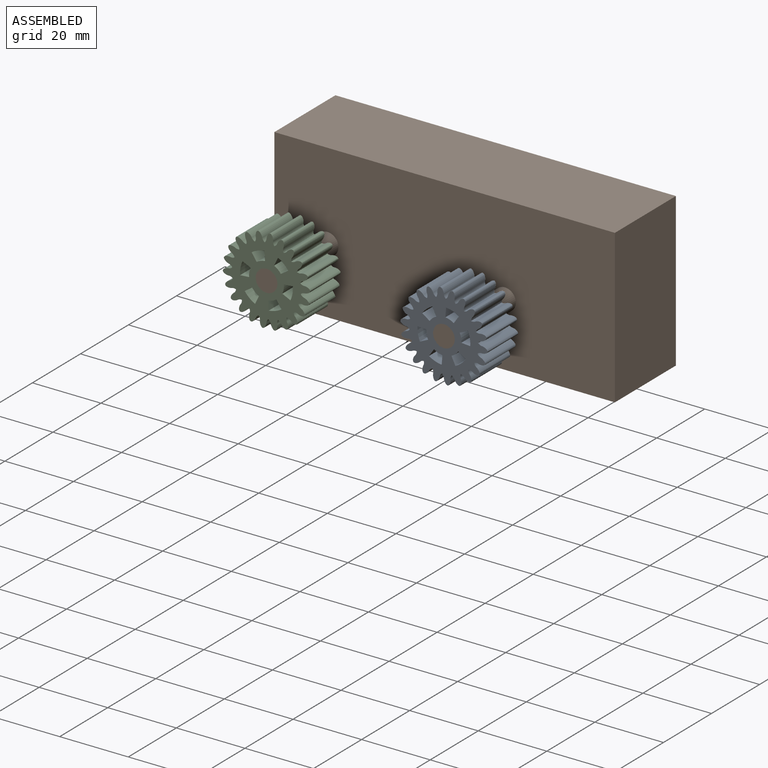
[diagram: assembled view]
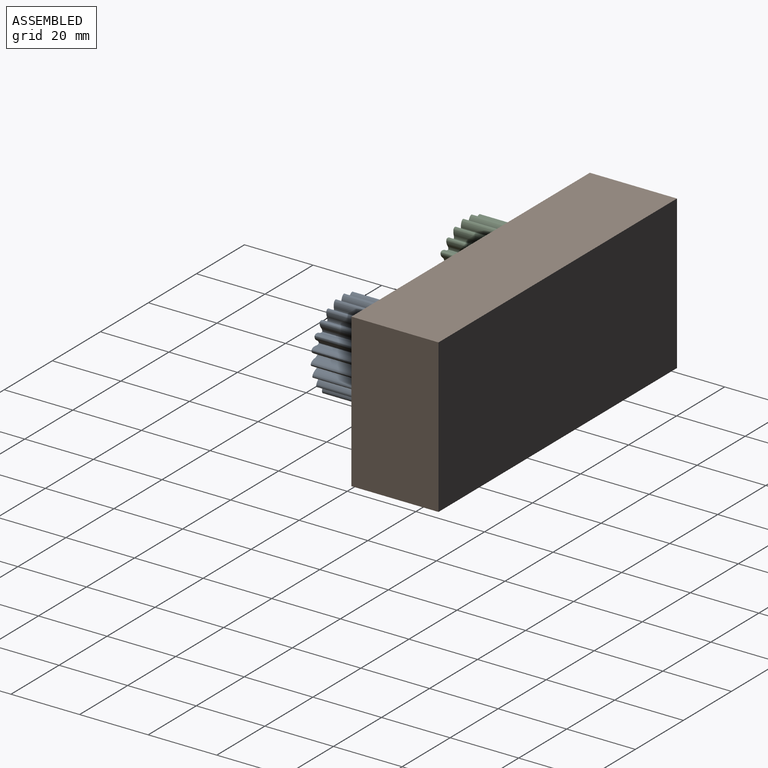
[diagram: assembled view, second angle]
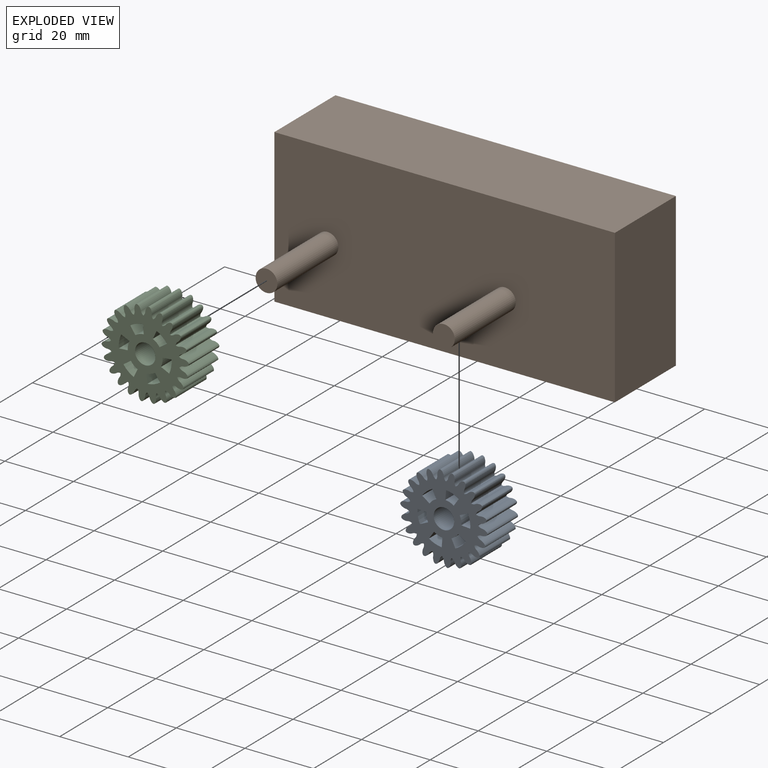
[diagram: exploded view]
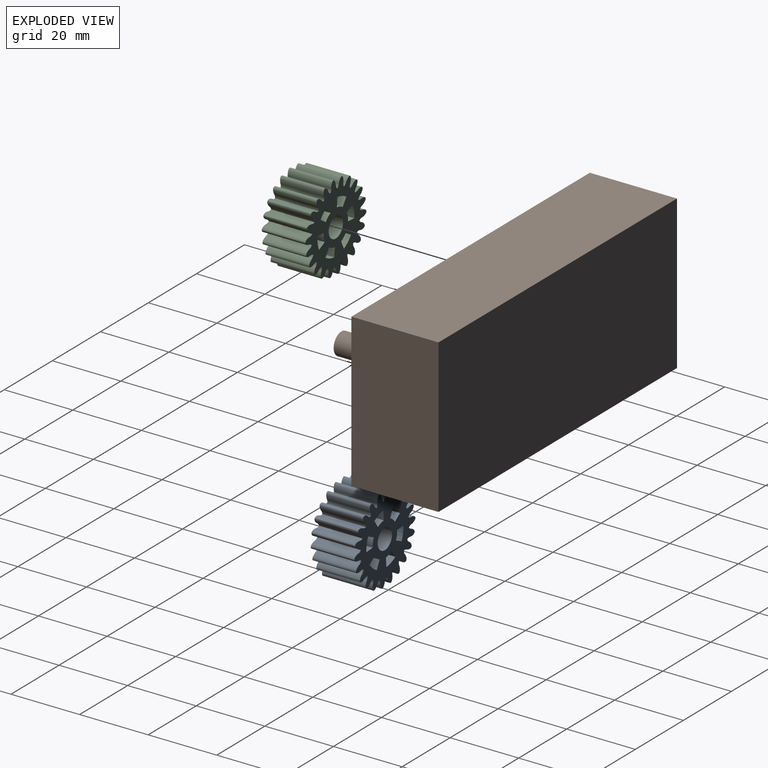
[diagram: exploded view, second angle]
ASSEMBLY  parts=3 mates=2
PART A: 159 faces, bbox 25.3x12.7x25.5 mm
  f0: cylinder r=0.93mm len=12.7mm, axis (0,1,0), area 9mm2, adj f1,f131,f132,f133
  f1: cylinder r=0.93mm len=12.7mm, axis (0,1,0), area 9mm2, adj f0,f2,f132,f133
  f2: cylinder r=2.63mm len=12.7mm, axis (0,1,0), area 19.8mm2, adj f1,f3,f132,f133
  f3: cylinder r=1.62mm len=12.7mm, axis (0,1,0), area 14mm2, adj f2,f4,f132,f133
  f4: cylinder r=1.62mm len=12.7mm, axis (0,1,0), area 14mm2, adj f3,f5,f132,f133
  f5: cylinder r=2.63mm len=12.7mm, axis (0,1,0), area 19.8mm2, adj f4,f6,f132,f133
  f6: cylinder r=0.93mm len=12.7mm, axis (0,1,0), area 9mm2, adj f5,f7,f132,f133
  f7: cylinder r=0.93mm len=12.7mm, axis (0,1,0), area 9mm2, adj f6,f8,f132,f133
  f8: cylinder r=2.63mm len=12.7mm, axis (0,1,0), area 19.8mm2, adj f7,f9,f132,f133
  f9: cylinder r=1.62mm len=12.7mm, axis (0,1,0), area 14mm2, adj f8,f10,f132,f133
  f10: cylinder r=1.62mm len=12.7mm, axis (0,1,0), area 14mm2, adj f9,f11,f132,f133
  f11: cylinder r=2.63mm len=12.7mm, axis (0,1,0), area 19.8mm2, adj f10,f12,f132,f133
  f12: cylinder r=0.93mm len=12.7mm, axis (0,1,0), area 9mm2, adj f11,f13,f132,f133
  f13: cylinder r=0.93mm len=12.7mm, axis (0,1,0), area 9mm2, adj f12,f14,f132,f133
  f14: cylinder r=2.63mm len=12.7mm, axis (0,1,0), area 19.8mm2, adj f13,f15,f132,f133
  f15: cylinder r=1.62mm len=12.7mm, axis (0,1,0), area 14mm2, adj f14,f16,f132,f133
  f16: cylinder r=1.62mm len=12.7mm, axis (0,1,0), area 14mm2, adj f15,f17,f132,f133
  f17: cylinder r=2.63mm len=12.7mm, axis (0,1,0), area 19.8mm2, adj f16,f18,f132,f133
  f18: cylinder r=0.93mm len=12.7mm, axis (0,1,0), area 9mm2, adj f17,f19,f132,f133
  f19: cylinder r=0.93mm len=12.7mm, axis (0,1,0), area 9mm2, adj f18,f20,f132,f133
  f20: cylinder r=2.63mm len=12.7mm, axis (0,1,0), area 19.8mm2, adj f19,f21,f132,f133
  f21: cylinder r=1.62mm len=12.7mm, axis (0,1,0), area 14mm2, adj f20,f22,f132,f133
  f22: cylinder r=1.62mm len=12.7mm, axis (0,1,0), area 14mm2, adj f21,f23,f132,f133
  f23: cylinder r=2.63mm len=12.7mm, axis (0,1,0), area 19.8mm2, adj f22,f24,f132,f133
  f24: cylinder r=0.93mm len=12.7mm, axis (0,1,0), area 9mm2, adj f23,f25,f132,f133
  f25: cylinder r=0.93mm len=12.7mm, axis (0,1,0), area 9mm2, adj f24,f26,f132,f133
  f26: cylinder r=2.63mm len=12.7mm, axis (0,1,0), area 19.8mm2, adj f25,f27,f132,f133
  f27: cylinder r=1.62mm len=12.7mm, axis (0,1,0), area 14mm2, adj f26,f28,f132,f133
  f28: cylinder r=1.62mm len=12.7mm, axis (0,1,0), area 14mm2, adj f27,f29,f132,f133
  f29: cylinder r=2.63mm len=12.7mm, axis (0,1,0), area 19.8mm2, adj f28,f30,f132,f133
  f30: cylinder r=0.93mm len=12.7mm, axis (0,1,0), area 9mm2, adj f29,f31,f132,f133
  f31: cylinder r=0.93mm len=12.7mm, axis (0,1,0), area 9mm2, adj f30,f32,f132,f133
  f32: cylinder r=2.63mm len=12.7mm, axis (0,1,0), area 19.8mm2, adj f31,f33,f132,f133
  f33: cylinder r=1.62mm len=12.7mm, axis (0,1,0), area 14mm2, adj f32,f34,f132,f133
  f34: cylinder r=1.62mm len=12.7mm, axis (0,1,0), area 14mm2, adj f33,f35,f132,f133
  f35: cylinder r=2.63mm len=12.7mm, axis (0,1,0), area 19.8mm2, adj f34,f36,f132,f133
  f36: cylinder r=0.93mm len=12.7mm, axis (0,1,0), area 9mm2, adj f35,f37,f132,f133
  f37: cylinder r=0.93mm len=12.7mm, axis (0,1,0), area 9mm2, adj f36,f38,f132,f133
  f38: cylinder r=2.63mm len=12.7mm, axis (0,1,0), area 19.8mm2, adj f37,f39,f132,f133
  f39: cylinder r=1.62mm len=12.7mm, axis (0,1,0), area 14mm2, adj f38,f40,f132,f133
  f40: cylinder r=1.62mm len=12.7mm, axis (0,1,0), area 14mm2, adj f39,f41,f132,f133
  f41: cylinder r=2.63mm len=12.7mm, axis (0,1,0), area 19.8mm2, adj f40,f42,f132,f133
  f42: cylinder r=0.93mm len=12.7mm, axis (0,1,0), area 9mm2, adj f41,f43,f132,f133
  f43: cylinder r=0.93mm len=12.7mm, axis (0,1,0), area 9mm2, adj f42,f44,f132,f133
  f44: cylinder r=2.63mm len=12.7mm, axis (0,1,0), area 19.8mm2, adj f43,f45,f132,f133
  f45: cylinder r=1.62mm len=12.7mm, axis (0,1,0), area 14mm2, adj f44,f46,f132,f133
  f46: cylinder r=1.62mm len=12.7mm, axis (0,1,0), area 14mm2, adj f45,f47,f132,f133
  f47: cylinder r=2.63mm len=12.7mm, axis (0,1,0), area 19.8mm2, adj f46,f48,f132,f133
  f48: cylinder r=0.93mm len=12.7mm, axis (0,1,0), area 9mm2, adj f47,f49,f132,f133
  f49: cylinder r=0.93mm len=12.7mm, axis (0,1,0), area 9mm2, adj f48,f50,f132,f133
  f50: cylinder r=2.63mm len=12.7mm, axis (0,1,0), area 19.8mm2, adj f49,f51,f132,f133
  f51: cylinder r=1.62mm len=12.7mm, axis (0,1,0), area 14mm2, adj f50,f52,f132,f133
  f52: cylinder r=1.62mm len=12.7mm, axis (0,1,0), area 14mm2, adj f51,f53,f132,f133
  f53: cylinder r=2.63mm len=12.7mm, axis (0,1,0), area 19.8mm2, adj f52,f54,f132,f133
  f54: cylinder r=0.93mm len=12.7mm, axis (0,1,0), area 9mm2, adj f53,f55,f132,f133
  f55: cylinder r=0.93mm len=12.7mm, axis (0,1,0), area 9mm2, adj f54,f56,f132,f133
  f56: cylinder r=2.63mm len=12.7mm, axis (0,1,0), area 19.8mm2, adj f55,f57,f132,f133
  f57: cylinder r=1.62mm len=12.7mm, axis (0,1,0), area 14mm2, adj f56,f58,f132,f133
  f58: cylinder r=1.62mm len=12.7mm, axis (0,1,0), area 14mm2, adj f57,f59,f132,f133
  f59: cylinder r=2.63mm len=12.7mm, axis (0,1,0), area 19.8mm2, adj f58,f60,f132,f133
  f60: cylinder r=0.93mm len=12.7mm, axis (0,1,0), area 9mm2, adj f59,f61,f132,f133
  f61: cylinder r=0.93mm len=12.7mm, axis (0,1,0), area 9mm2, adj f60,f62,f132,f133
  f62: cylinder r=2.63mm len=12.7mm, axis (0,1,0), area 19.8mm2, adj f61,f63,f132,f133
  f63: cylinder r=1.62mm len=12.7mm, axis (0,1,0), area 14mm2, adj f62,f64,f132,f133
  f64: cylinder r=1.62mm len=12.7mm, axis (0,1,0), area 14mm2, adj f63,f65,f132,f133
  f65: cylinder r=2.63mm len=12.7mm, axis (0,1,0), area 19.8mm2, adj f64,f66,f132,f133
  f66: cylinder r=0.93mm len=12.7mm, axis (0,1,0), area 9mm2, adj f65,f67,f132,f133
  f67: cylinder r=0.93mm len=12.7mm, axis (0,1,0), area 9mm2, adj f66,f68,f132,f133
  f68: cylinder r=2.63mm len=12.7mm, axis (0,1,0), area 19.8mm2, adj f67,f69,f132,f133
  f69: cylinder r=1.62mm len=12.7mm, axis (0,1,0), area 14mm2, adj f68,f70,f132,f133
  f70: cylinder r=1.62mm len=12.7mm, axis (0,1,0), area 14mm2, adj f69,f71,f132,f133
  f71: cylinder r=2.63mm len=12.7mm, axis (0,1,0), area 19.8mm2, adj f70,f72,f132,f133
  f72: cylinder r=0.93mm len=12.7mm, axis (0,1,0), area 9mm2, adj f71,f73,f132,f133
  f73: cylinder r=0.93mm len=12.7mm, axis (0,1,0), area 9mm2, adj f72,f74,f132,f133
  f74: cylinder r=2.63mm len=12.7mm, axis (0,1,0), area 19.8mm2, adj f73,f75,f132,f133
  f75: cylinder r=1.62mm len=12.7mm, axis (0,1,0), area 14mm2, adj f74,f76,f132,f133
  f76: cylinder r=1.62mm len=12.7mm, axis (0,1,0), area 14mm2, adj f75,f77,f132,f133
  f77: cylinder r=2.63mm len=12.7mm, axis (0,1,0), area 19.8mm2, adj f76,f78,f132,f133
  f78: cylinder r=0.93mm len=12.7mm, axis (0,1,0), area 9mm2, adj f77,f79,f132,f133
  f79: cylinder r=0.93mm len=12.7mm, axis (0,1,0), area 9mm2, adj f78,f80,f132,f133
  f80: cylinder r=2.63mm len=12.7mm, axis (0,1,0), area 19.8mm2, adj f79,f81,f132,f133
  f81: cylinder r=1.62mm len=12.7mm, axis (0,1,0), area 14mm2, adj f80,f82,f132,f133
  f82: cylinder r=1.62mm len=12.7mm, axis (0,1,0), area 14mm2, adj f81,f83,f132,f133
  f83: cylinder r=2.63mm len=12.7mm, axis (0,1,0), area 19.8mm2, adj f82,f84,f132,f133
  f84: cylinder r=0.93mm len=12.7mm, axis (0,1,0), area 9mm2, adj f83,f85,f132,f133
  f85: cylinder r=0.93mm len=12.7mm, axis (0,1,0), area 9mm2, adj f84,f86,f132,f133
  f86: cylinder r=2.63mm len=12.7mm, axis (0,1,0), area 19.8mm2, adj f85,f87,f132,f133
  f87: cylinder r=1.62mm len=12.7mm, axis (0,1,0), area 14mm2, adj f86,f88,f132,f133
  f88: cylinder r=1.62mm len=12.7mm, axis (0,1,0), area 14mm2, adj f87,f89,f132,f133
  f89: cylinder r=2.63mm len=12.7mm, axis (0,1,0), area 19.8mm2, adj f88,f90,f132,f133
  f90: cylinder r=0.93mm len=12.7mm, axis (0,1,0), area 9mm2, adj f89,f91,f132,f133
  f91: cylinder r=0.93mm len=12.7mm, axis (0,1,0), area 9mm2, adj f90,f92,f132,f133
  f92: cylinder r=2.63mm len=12.7mm, axis (0,1,0), area 19.8mm2, adj f91,f93,f132,f133
  f93: cylinder r=1.62mm len=12.7mm, axis (0,1,0), area 14mm2, adj f92,f94,f132,f133
  f94: cylinder r=1.62mm len=12.7mm, axis (0,1,0), area 14mm2, adj f93,f95,f132,f133
  f95: cylinder r=2.63mm len=12.7mm, axis (0,1,0), area 19.8mm2, adj f94,f96,f132,f133
  f96: cylinder r=0.93mm len=12.7mm, axis (0,1,0), area 9mm2, adj f95,f97,f132,f133
  f97: cylinder r=0.93mm len=12.7mm, axis (0,1,0), area 9mm2, adj f96,f98,f132,f133
  f98: cylinder r=2.63mm len=12.7mm, axis (0,1,0), area 19.8mm2, adj f97,f99,f132,f133
  f99: cylinder r=1.62mm len=12.7mm, axis (0,1,0), area 14mm2, adj f98,f100,f132,f133
  f100: cylinder r=1.62mm len=12.7mm, axis (0,1,0), area 14mm2, adj f99,f101,f132,f133
  f101: cylinder r=2.63mm len=12.7mm, axis (0,1,0), area 19.8mm2, adj f100,f102,f132,f133
  f102: cylinder r=0.93mm len=12.7mm, axis (0,1,0), area 9mm2, adj f101,f103,f132,f133
  f103: cylinder r=0.93mm len=12.7mm, axis (0,1,0), area 9mm2, adj f102,f104,f132,f133
  f104: cylinder r=2.63mm len=12.7mm, axis (0,1,0), area 19.8mm2, adj f103,f105,f132,f133
  f105: cylinder r=1.62mm len=12.7mm, axis (0,1,0), area 14mm2, adj f104,f106,f132,f133
  f106: cylinder r=1.62mm len=12.7mm, axis (0,1,0), area 14mm2, adj f105,f107,f132,f133
  f107: cylinder r=2.63mm len=12.7mm, axis (0,1,0), area 19.8mm2, adj f106,f108,f132,f133
  f108: cylinder r=0.93mm len=12.7mm, axis (0,1,0), area 9mm2, adj f107,f109,f132,f133
  f109: cylinder r=0.93mm len=12.7mm, axis (0,1,0), area 9mm2, adj f108,f110,f132,f133
  f110: cylinder r=2.63mm len=12.7mm, axis (0,1,0), area 19.8mm2, adj f109,f111,f132,f133
  f111: cylinder r=1.62mm len=12.7mm, axis (0,1,0), area 14mm2, adj f110,f112,f132,f133
  f112: cylinder r=1.62mm len=12.7mm, axis (0,1,0), area 14mm2, adj f111,f113,f132,f133
  f113: cylinder r=2.63mm len=12.7mm, axis (0,1,0), area 19.8mm2, adj f112,f114,f132,f133
  f114: cylinder r=0.93mm len=12.7mm, axis (0,1,0), area 9mm2, adj f113,f115,f132,f133
  f115: cylinder r=0.93mm len=12.7mm, axis (0,1,0), area 9mm2, adj f114,f116,f132,f133
  f116: cylinder r=2.63mm len=12.7mm, axis (0,1,0), area 19.8mm2, adj f115,f117,f132,f133
  f117: cylinder r=1.62mm len=12.7mm, axis (0,1,0), area 14mm2, adj f116,f118,f132,f133
  f118: cylinder r=1.62mm len=12.7mm, axis (0,1,0), area 14mm2, adj f117,f119,f132,f133
  f119: cylinder r=2.63mm len=12.7mm, axis (0,1,0), area 19.8mm2, adj f118,f120,f132,f133
  f120: cylinder r=0.93mm len=12.7mm, axis (0,1,0), area 9mm2, adj f119,f121,f132,f133
  f121: cylinder r=0.93mm len=12.7mm, axis (0,1,0), area 9mm2, adj f120,f122,f132,f133
  f122: cylinder r=2.63mm len=12.7mm, axis (0,1,0), area 19.8mm2, adj f121,f123,f132,f133
  f123: cylinder r=1.62mm len=12.7mm, axis (0,1,0), area 14mm2, adj f122,f124,f132,f133
  f124: cylinder r=1.62mm len=12.7mm, axis (0,1,0), area 14mm2, adj f123,f125,f132,f133
  f125: cylinder r=2.63mm len=12.7mm, axis (0,1,0), area 19.8mm2, adj f124,f126,f132,f133
  f126: cylinder r=0.93mm len=12.7mm, axis (0,1,0), area 9mm2, adj f125,f127,f132,f133
  f127: cylinder r=0.93mm len=12.7mm, axis (0,1,0), area 9mm2, adj f126,f128,f132,f133
  f128: cylinder r=2.63mm len=12.7mm, axis (0,1,0), area 19.8mm2, adj f127,f129,f132,f133
  f129: cylinder r=1.62mm len=12.7mm, axis (0,1,0), area 14mm2, adj f128,f130,f132,f133
  f130: cylinder r=1.62mm len=12.7mm, axis (0,1,0), area 14mm2, adj f129,f131,f132,f133
  f131: cylinder r=2.63mm len=12.7mm, axis (0,1,0), area 19.8mm2, adj f0,f130,f132,f133
  f132: plane 25.53x25.27mm, normal (0,-1,0), area 340.9mm2, adj f0,f1,f2,f3,f4,f5,f6,f7
  f133: plane 25.53x25.27mm, normal (0,1,0), area 340.9mm2, adj f0,f1,f2,f3,f4,f5,f6,f7
  f134: plane 12.7x2.53mm, normal (-0.96,0,-0.26), area 33.3mm2, adj f132,f133,f135,f137
  f135: cylinder r=7.72mm len=12.7mm, axis (0,-1,0), area 50.6mm2, adj f132,f133,f134,f136
  f136: plane 12.7x1.86mm, normal (0.71,0,0.7), area 33.3mm2, adj f132,f133,f135,f137
  f137: cylinder r=5.09mm len=12.7mm, axis (0,-1,0), area 33.4mm2, adj f132,f133,f134,f136
  f138: cylinder r=2.98mm len=12.7mm, axis (0,-1,0), area 237.5mm2, adj f132,f133
  f139: plane 12.7x2.54mm, normal (-0.26,0,-0.97), area 33.3mm2, adj f132,f133,f140,f142
  f140: cylinder r=7.72mm len=12.7mm, axis (0,-1,0), area 50.6mm2, adj f132,f133,f139,f141
  f141: plane 12.7x2.54mm, normal (-0.26,0,0.97), area 33.3mm2, adj f132,f133,f140,f142
  f142: cylinder r=5.09mm len=12.7mm, axis (0,-1,0), area 33.4mm2, adj f132,f133,f139,f141
  f143: plane 12.7x1.86mm, normal (0.71,0,-0.7), area 33.3mm2, adj f132,f133,f144,f146
  f144: cylinder r=7.72mm len=12.7mm, axis (0,-1,0), area 50.6mm2, adj f132,f133,f143,f145
  f145: plane 12.7x2.53mm, normal (-0.96,0,0.26), area 33.3mm2, adj f132,f133,f144,f146
  f146: cylinder r=5.09mm len=12.7mm, axis (0,-1,0), area 33.4mm2, adj f132,f133,f143,f145
  f147: plane 12.7x2.53mm, normal (0.96,0,0.26), area 33.3mm2, adj f132,f133,f148,f150
  f148: cylinder r=7.72mm len=12.7mm, axis (0,-1,0), area 50.6mm2, adj f132,f133,f147,f149
  f149: plane 12.7x1.86mm, normal (-0.71,0,-0.7), area 33.3mm2, adj f132,f133,f148,f150
  f150: cylinder r=5.09mm len=12.7mm, axis (0,-1,0), area 33.4mm2, adj f132,f133,f147,f149
  f151: plane 12.7x2.54mm, normal (0.26,0,0.97), area 33.3mm2, adj f132,f133,f152,f154
  f152: cylinder r=7.72mm len=12.7mm, axis (0,-1,0), area 50.6mm2, adj f132,f133,f151,f153
  f153: plane 12.7x2.54mm, normal (0.26,0,-0.97), area 33.3mm2, adj f132,f133,f152,f154
  f154: cylinder r=5.09mm len=12.7mm, axis (0,-1,0), area 33.4mm2, adj f132,f133,f151,f153
  f155: plane 12.7x1.86mm, normal (-0.71,0,0.7), area 33.3mm2, adj f132,f133,f156,f158
  f156: cylinder r=7.72mm len=12.7mm, axis (0,-1,0), area 50.6mm2, adj f132,f133,f155,f157
  f157: plane 12.7x2.53mm, normal (0.96,0,-0.26), area 33.3mm2, adj f132,f133,f156,f158
  f158: cylinder r=5.09mm len=12.7mm, axis (0,-1,0), area 33.4mm2, adj f132,f133,f155,f157
PART B: 10 faces, bbox 99.3x50.8x44.7 mm
  f0: plane 44.66x25.4mm, normal (-1,0,0), area 1134.4mm2, adj f1,f3,f4,f5
  f1: plane 99.27x25.4mm, normal (0,0,-1), area 2521.5mm2, adj f0,f2,f4,f5
  f2: plane 44.66x25.4mm, normal (1,0,0), area 1134.4mm2, adj f1,f3,f4,f5
  f3: plane 99.27x25.4mm, normal (0,0,1), area 2521.5mm2, adj f0,f2,f4,f5
  f4: plane 99.27x44.66mm, normal (0,-1,0), area 4370.3mm2, adj f0,f1,f2,f3,f6,f8
  f5: plane 99.27x44.66mm, normal (0,1,0), area 4433.6mm2, adj f0,f1,f2,f3
  f6: cylinder r=3.17mm len=25.4mm, axis (0,1,0), area 506.7mm2, adj f4,f7
  f7: plane 6.35x6.35mm, normal (0,-1,0), area 31.7mm2, adj f6
  f8: cylinder r=3.17mm len=25.4mm, axis (0,1,0), area 506.7mm2, adj f4,f9
  f9: plane 6.35x6.35mm, normal (0,-1,0), area 31.7mm2, adj f8
PART C: same geometry as A
PLACE A rot(axis=(0,-1,0),70.5deg) t=(62.41,0.67,-17.7)mm
PLACE B t=(40.5,38.77,-13.4)mm fixed
PLACE C rot(axis=(0,1,0),70.5deg) t=(10.69,0.67,-16.93)mm
MATE revolute A.f135 <-> B.f8  axis (0,-1,0) through (62.41,-12.03,-17.7)mm
MATE revolute C.f135 <-> B.f6  axis (0,-1,0) through (10.69,-12.03,-16.93)mm
